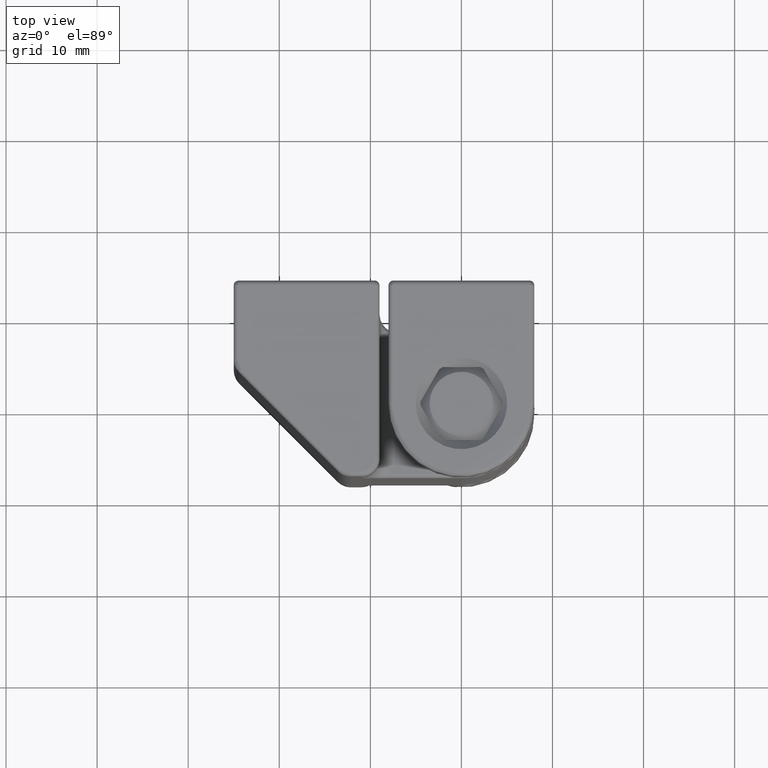
[diagram: clean part render]
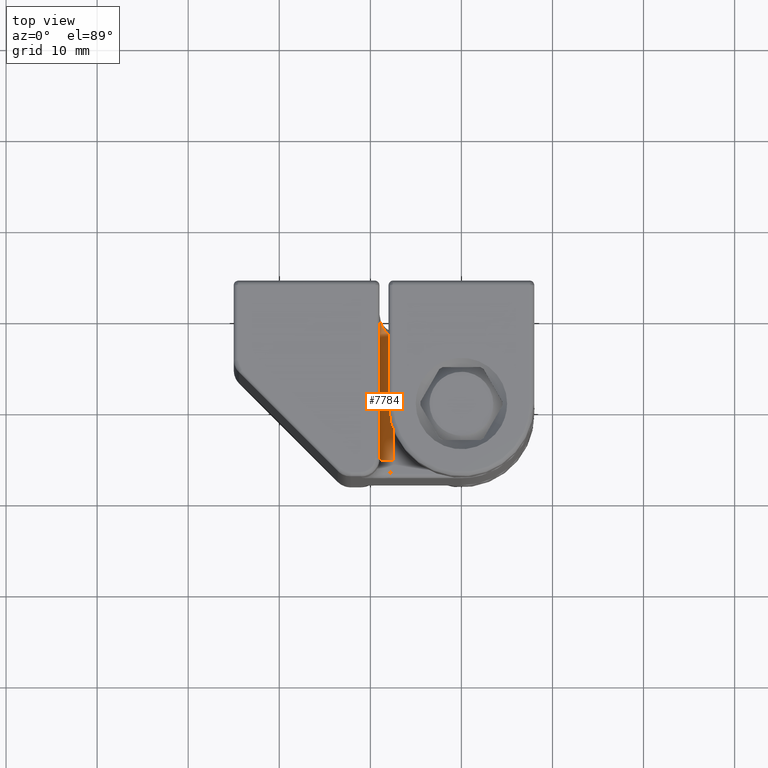
[diagram: same view with one face highlighted and labeled with its STEP entity id]
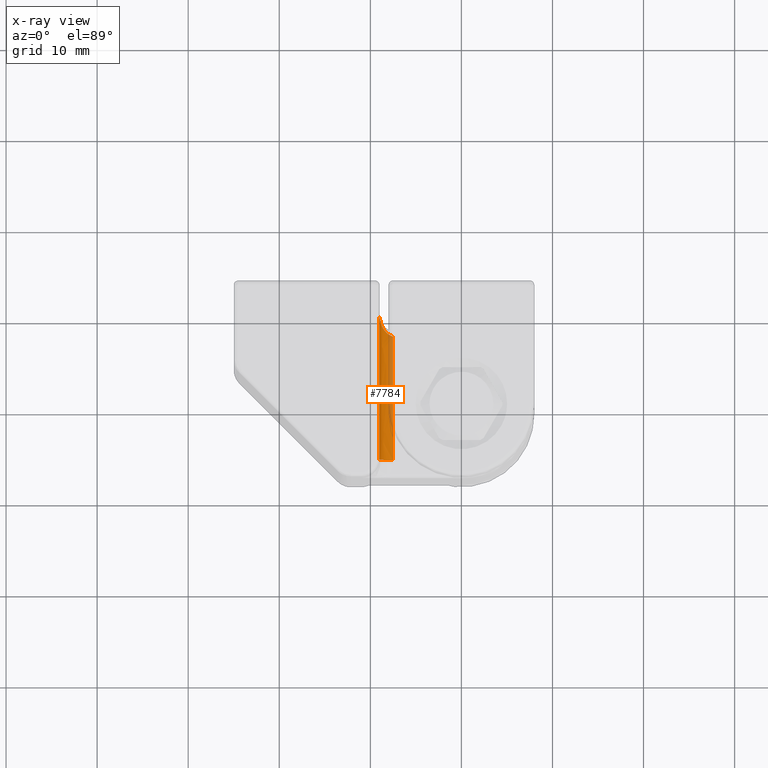
[diagram: x-ray of the same camera — body ghosted, the highlighted face saturated]
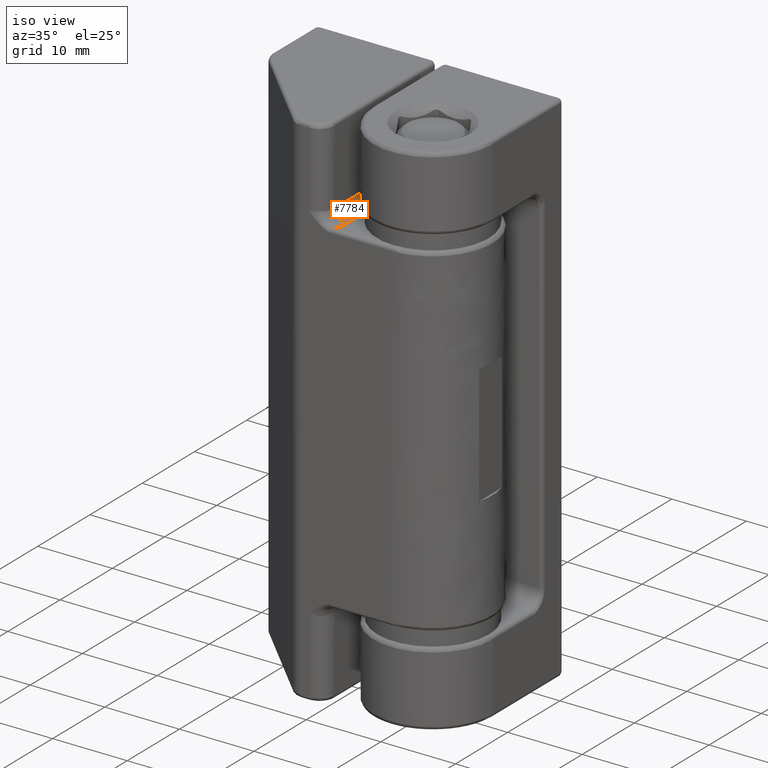
[diagram: same view with one face highlighted and labeled with its STEP entity id]
A machine part, top view. The second image highlights one B-rep face of the part: STEP entity #7784.
The next image is the same camera in x-ray: the body ghosted, the highlighted face saturated — about 21% of this face is hidden behind the body in this view.
A second angle (iso view) of the same face is appended — the face is thin or edge-on in the first view.
In plain terms, the highlighted face is a freeform B-spline surface patch.
Its self-contained STEP definition (entity closure, byte-faithful):
#3340=CARTESIAN_POINT('',(-7.500000000000000,0.0,58.0));
#3341=VERTEX_POINT('',#3340);
#7078=CARTESIAN_POINT('',(-9.0,-6.000000000003290,59.500000000000000));
#7079=VERTEX_POINT('',#7078);
#7211=CARTESIAN_POINT('',(-9.0,10.0,59.500000000000000));
#7212=VERTEX_POINT('',#7211);
#7331=CARTESIAN_POINT('',(-9.0,-6.000000000003290,59.500000000000000));
#7332=CARTESIAN_POINT('',(-9.0,10.0,59.500000000000000));
#7333=QUASI_UNIFORM_CURVE('',1,(#7331,#7332),.UNSPECIFIED.,.F.,.U.);
#7334=EDGE_CURVE('',#7079,#7212,#7333,.T.);
#7357=CARTESIAN_POINT('',(-7.500000000000000,7.550510257216810,58.0));
#7358=VERTEX_POINT('',#7357);
#7372=CARTESIAN_POINT('',(-7.500000000000000,7.550510257216810,58.0));
#7373=CARTESIAN_POINT('',(-7.500000000000000,0.0,58.0));
#7374=QUASI_UNIFORM_CURVE('',1,(#7372,#7373),.UNSPECIFIED.,.F.,.U.);
#7375=EDGE_CURVE('',#7358,#3341,#7374,.T.);
#7670=CARTESIAN_POINT('',(-7.500000000000000,7.550510257216810,58.0));
#7671=CARTESIAN_POINT('',(-7.570691997604722,7.569750181997881,58.000000000000007));
#7672=CARTESIAN_POINT('',(-7.638473132148786,7.593828478851064,58.004951377221197));
#7673=CARTESIAN_POINT('',(-7.769087025781771,7.650346184524055,58.022861764980753));
#7674=CARTESIAN_POINT('',(-7.831913443064606,7.682794651457276,58.035836028092518));
#7675=CARTESIAN_POINT('',(-7.922817596086797,7.737173812110454,58.060482390514402));
#7676=CARTESIAN_POINT('',(-7.952645148678394,7.756320310649304,58.069601306843097));
#7677=CARTESIAN_POINT('',(-8.010348729708316,7.795828378364745,58.089159035861186));
#7678=CARTESIAN_POINT('',(-8.038329040963502,7.816244621757453,58.099620156761183));
#7679=CARTESIAN_POINT('',(-8.119902423520736,7.879310004131631,58.132824652032497));
#7680=CARTESIAN_POINT('',(-8.171140098069069,7.923767350818030,58.157378190923659));
#7681=CARTESIAN_POINT('',(-8.268245992521285,8.016875601825509,58.210480535851197));
#7682=CARTESIAN_POINT('',(-8.314288080133007,8.065761558664784,58.239176108970561));
#7683=CARTESIAN_POINT('',(-8.400227298457944,8.165675155132741,58.299028404687100));
#7684=CARTESIAN_POINT('',(-8.440265359078202,8.216799265422493,58.330234771241642));
#7685=CARTESIAN_POINT('',(-8.552863937358215,8.373233680592742,58.427024663382717));
#7686=CARTESIAN_POINT('',(-8.617984999160715,8.481578278353345,58.495741673114907));
#7687=CARTESIAN_POINT('',(-8.703565012218887,8.649228736907070,58.603597427084708));
#7688=CARTESIAN_POINT('',(-8.730049498659099,8.706009747868244,58.640381101033427));
#7689=CARTESIAN_POINT('',(-8.778682600528772,8.819887907811040,58.714546482777642));
#7690=CARTESIAN_POINT('',(-8.800921421232012,8.877153754721681,58.752036564759827));
#7691=CARTESIAN_POINT('',(-8.861939578322582,9.049884549200906,58.865567999148233));
#7692=CARTESIAN_POINT('',(-8.895058572269003,9.166277591507999,58.942661868543219));
#7693=CARTESIAN_POINT('',(-8.947791935070674,9.401443582807229,59.099110082963833));
#7694=CARTESIAN_POINT('',(-8.967414249449544,9.520426087560285,59.178608841098651));
#7695=CARTESIAN_POINT('',(-8.987006979848049,9.700033105972590,59.298854639600933));
#7696=CARTESIAN_POINT('',(-8.991881683193906,9.759954912919477,59.339012150968507));
#7697=CARTESIAN_POINT('',(-8.996754627862474,9.849929133774095,59.399339208135352));
#7698=CARTESIAN_POINT('',(-8.997971974319803,9.879935800605571,59.419463388674039));
#7699=CARTESIAN_POINT('',(-8.999595012270929,9.939981842850870,59.459738594366343));
#7700=CARTESIAN_POINT('',(-9.000000000000002,9.970224102231027,59.480025727506373));
#7701=CARTESIAN_POINT('',(-9.0,10.0,59.500000000000000));
#7702=B_SPLINE_CURVE_WITH_KNOTS('',3,(#7670,#7671,#7672,#7673,#7674,#7675,#7676,#7677,#7678,#7679,#7680,#7681,#7682,#7683,#7684,#7685,#7686,#7687,#7688,#7689,#7690,#7691,#7692,#7693,#7694,#7695,#7696,#7697,#7698,#7699,#7700,#7701),.UNSPECIFIED.,.F.,.U.,(4,2,2,2,2,2,2,2,2,2,2,2,2,2,2,4),(0.0,0.062499999999996,0.124999999999993,0.156249999999992,0.187499999999991,0.249999999999989,0.312499999999988,0.374999999999986,0.499999999999986,0.562499999999987,0.624999999999989,0.749999999999993,0.874999999999996,0.937499999999998,0.968749999999999,1.0),.UNSPECIFIED.);
#7703=EDGE_CURVE('',#7358,#7212,#7702,.T.);
#7728=CARTESIAN_POINT('',(-7.500000000000000,-6.000000000003290,58.0));
#7729=VERTEX_POINT('',#7728);
#7743=CARTESIAN_POINT('',(-7.500000000000000,-6.000000000003290,57.999999999999993));
#7744=CARTESIAN_POINT('',(-9.000000000000002,-6.000000000003290,57.999999999999979));
#7745=CARTESIAN_POINT('',(-9.0,-6.000000000003290,59.500000000000000));
#7753=(BOUNDED_CURVE()B_SPLINE_CURVE(2,(#7743,#7744,#7745),.UNSPECIFIED.,.F.,.U.)CURVE()GEOMETRIC_REPRESENTATION_ITEM()QUASI_UNIFORM_CURVE()RATIONAL_B_SPLINE_CURVE((1.0,0.707106781186548,1.0))REPRESENTATION_ITEM(''));
#7754=EDGE_CURVE('',#7729,#7079,#7753,.T.);
#7759=CARTESIAN_POINT('',(-8.998572332372786,-6.400000000003374,59.565429081048002));
#7760=CARTESIAN_POINT('',(-8.998572332372786,10.410000000000080,59.565429081048002));
#7761=CARTESIAN_POINT('',(-9.071901736403984,-6.400000000003374,57.885909603311461));
#7762=CARTESIAN_POINT('',(-9.071901736403984,10.410000000000082,57.885909603311461));
#7763=CARTESIAN_POINT('',(-7.394912861934714,-6.400000000003373,58.003685630152098));
#7764=CARTESIAN_POINT('',(-7.394912861934714,10.410000000000084,58.003685630152098));
#7772=(BOUNDED_SURFACE()B_SPLINE_SURFACE(1,2,((#7759,#7761,#7763),(#7760,#7762,#7764)),.UNSPECIFIED.,.F.,.F.,.U.)B_SPLINE_SURFACE_WITH_KNOTS((2,2),(3,3),(0.0,16.810000000003459),(0.0,2.687613809762993),.UNSPECIFIED.)GEOMETRIC_REPRESENTATION_ITEM()RATIONAL_B_SPLINE_SURFACE(((1.0,0.664513898535122,0.996233561259061),(1.0,0.664513898535122,0.996233561259061)))REPRESENTATION_ITEM('')SURFACE());
#7773=ORIENTED_EDGE('',*,*,#7375,.F.);
#7774=ORIENTED_EDGE('',*,*,#7703,.T.);
#7775=ORIENTED_EDGE('',*,*,#7334,.F.);
#7776=ORIENTED_EDGE('',*,*,#7754,.F.);
#7777=CARTESIAN_POINT('',(-7.500000000000000,0.0,58.0));
#7778=CARTESIAN_POINT('',(-7.500000000000000,-6.000000000003290,58.0));
#7779=QUASI_UNIFORM_CURVE('',1,(#7777,#7778),.UNSPECIFIED.,.F.,.U.);
#7780=EDGE_CURVE('',#3341,#7729,#7779,.T.);
#7781=ORIENTED_EDGE('',*,*,#7780,.F.);
#7782=EDGE_LOOP('',(#7773,#7774,#7775,#7776,#7781));
#7783=FACE_OUTER_BOUND('',#7782,.T.);
#7784=ADVANCED_FACE('',(#7783),#7772,.F.);